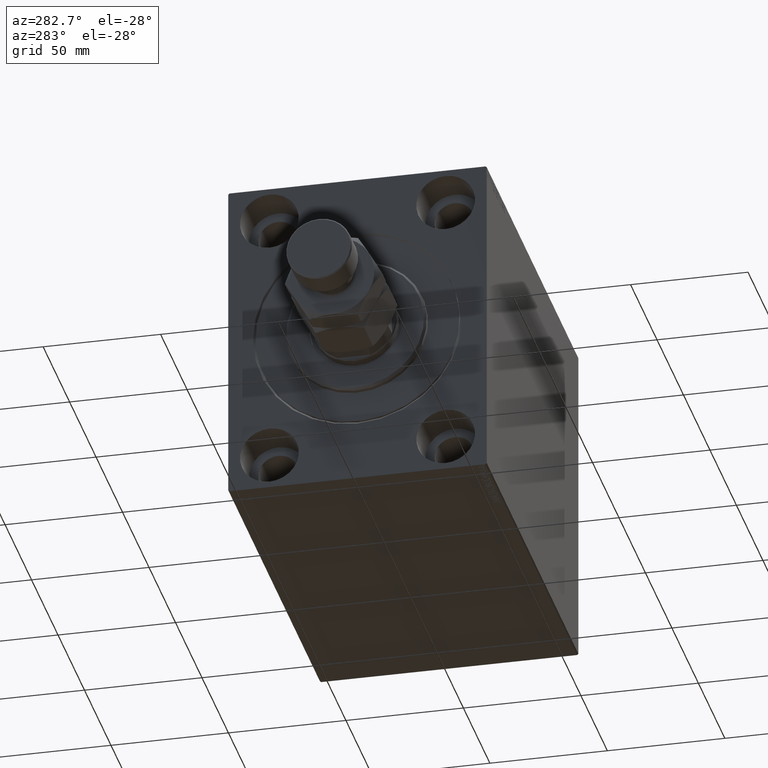
[diagram: clean part render]
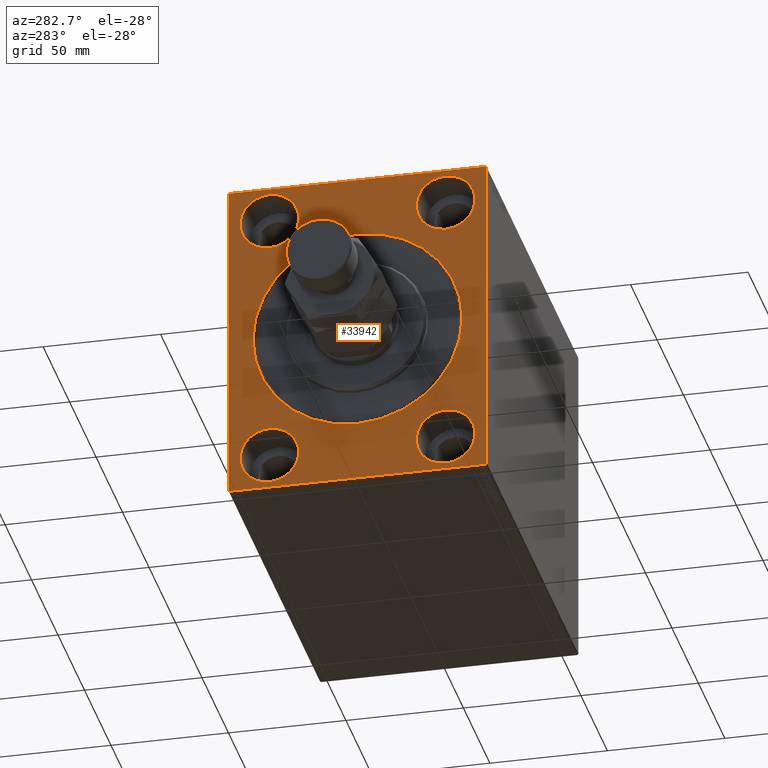
[diagram: same view with one face highlighted and labeled with its STEP entity id]
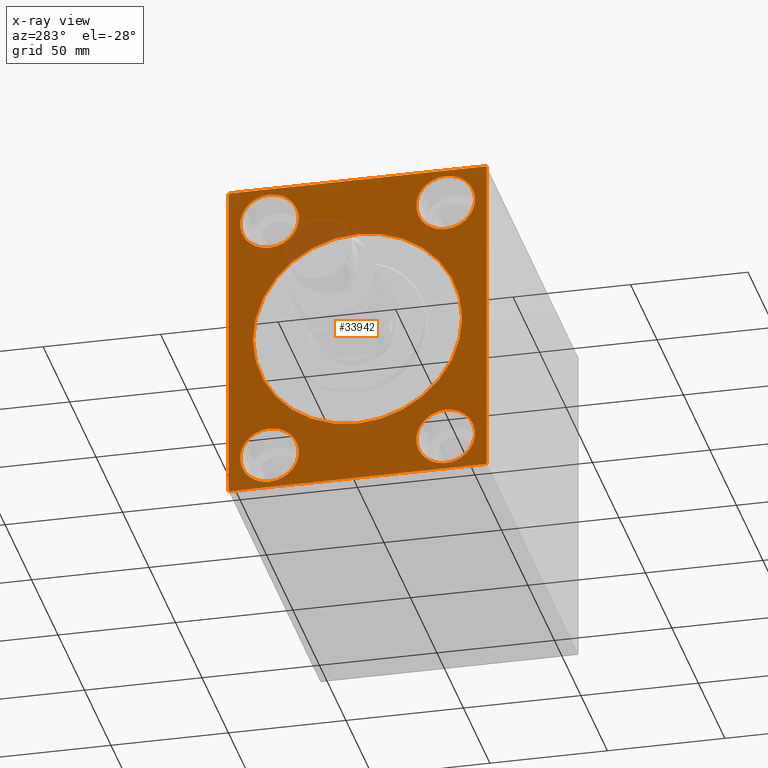
[diagram: x-ray of the same camera — body ghosted, the highlighted face saturated]
A machine part, auxiliary view. The second image highlights one B-rep face of the part: STEP entity #33942.
The next image is the same camera in x-ray: the body ghosted, the highlighted face saturated — about 4% of this face is hidden behind the body in this view.
In plain terms, the highlighted planar face has unit normal (1, 0, 0).
Its self-contained STEP definition (entity closure, byte-faithful):
#643 = CARTESIAN_POINT ( 'NONE',  ( 0.000000000000000000, 0.000000000000000000, 0.000000000000000000 ) ) ;
#1263 = EDGE_CURVE ( 'NONE', #8685, #42105, #13647, .T. ) ;
#1403 = ORIENTED_EDGE ( 'NONE', *, *, #1263, .F. ) ;
#1580 = ORIENTED_EDGE ( 'NONE', *, *, #45381, .T. ) ;
#1632 = DIRECTION ( 'NONE',  ( 1.000000000000000000, 0.000000000000000000, 0.000000000000000000 ) ) ;
#1695 = ORIENTED_EDGE ( 'NONE', *, *, #32807, .F. ) ;
#1754 = CARTESIAN_POINT ( 'NONE',  ( 0.000000000000000000, 37.49999999999997868, -67.49999999999998579 ) ) ;
#1776 = EDGE_CURVE ( 'NONE', #16353, #32820, #16594, .T. ) ;
#2021 = FACE_BOUND ( 'NONE', #44489, .T. ) ;
#2114 = LINE ( 'NONE', #40342, #9102 ) ;
#2124 = EDGE_CURVE ( 'NONE', #30920, #30005, #43813, .T. ) ;
#2159 = EDGE_LOOP ( 'NONE', ( #10799, #1580, #25220, #12061, #42163, #17753, #25657, #2765 ) ) ;
#2565 = CARTESIAN_POINT ( 'NONE',  ( 0.000000000000000000, -37.50000000000002132, -54.99999999999999289 ) ) ;
#2765 = ORIENTED_EDGE ( 'NONE', *, *, #3511, .T. ) ;
#3091 = AXIS2_PLACEMENT_3D ( 'NONE', #44102, #43644, #40191 ) ;
#3511 = EDGE_CURVE ( 'NONE', #25578, #35047, #10418, .T. ) ;
#4516 = VERTEX_POINT ( 'NONE', #37084 ) ;
#4593 = EDGE_CURVE ( 'NONE', #10988, #16775, #45145, .T. ) ;
#4630 = DIRECTION ( 'NONE',  ( 0.000000000000000000, 0.000000000000000000, -1.000000000000000000 ) ) ;
#5181 = ORIENTED_EDGE ( 'NONE', *, *, #17917, .F. ) ;
#5474 = FACE_BOUND ( 'NONE', #15330, .T. ) ;
#5680 = CARTESIAN_POINT ( 'NONE',  ( 0.000000000000000000, 37.50000000000000711, 42.50000000000000711 ) ) ;
#5946 = VECTOR ( 'NONE', #34794, 1000.000000000000000 ) ;
#6247 = AXIS2_PLACEMENT_3D ( 'NONE', #24162, #38206, #20711 ) ;
#6376 = FACE_BOUND ( 'NONE', #20021, .T. ) ;
#6931 = LINE ( 'NONE', #16400, #5946 ) ;
#7049 = DIRECTION ( 'NONE',  ( 0.000000000000000000, -1.000000000000000000, -1.261617073437677999E-16 ) ) ;
#7282 = CARTESIAN_POINT ( 'NONE',  ( 0.000000000000000000, 54.99999999999999289, 70.00000000000000000 ) ) ;
#7882 = EDGE_LOOP ( 'NONE', ( #22216, #10184 ) ) ;
#7886 = CARTESIAN_POINT ( 'NONE',  ( 0.000000000000000000, 37.50000000000000711, 55.00000000000000711 ) ) ;
#8685 = VERTEX_POINT ( 'NONE', #5680 ) ;
#9020 = DIRECTION ( 'NONE',  ( -1.000000000000000000, 0.000000000000000000, 0.000000000000000000 ) ) ;
#9032 = DIRECTION ( 'NONE',  ( 0.000000000000000000, 0.000000000000000000, 1.000000000000000000 ) ) ;
#9049 = CARTESIAN_POINT ( 'NONE',  ( 0.000000000000000000, -54.50000000000000711, 69.99999999999998579 ) ) ;
#9102 = VECTOR ( 'NONE', #15687, 1000.000000000000000 ) ;
#9129 = VECTOR ( 'NONE', #20738, 1000.000000000000114 ) ;
#9307 = VECTOR ( 'NONE', #16139, 1000.000000000000000 ) ;
#9322 = VERTEX_POINT ( 'NONE', #36373 ) ;
#10184 = ORIENTED_EDGE ( 'NONE', *, *, #24791, .T. ) ;
#10309 = DIRECTION ( 'NONE',  ( -1.000000000000000000, 0.000000000000000000, 0.000000000000000000 ) ) ;
#10418 = LINE ( 'NONE', #38492, #43851 ) ;
#10799 = ORIENTED_EDGE ( 'NONE', *, *, #14461, .F. ) ;
#10988 = VERTEX_POINT ( 'NONE', #12527 ) ;
#11446 = AXIS2_PLACEMENT_3D ( 'NONE', #2565, #9020, #16605 ) ;
#11686 = DIRECTION ( 'NONE',  ( 0.000000000000000000, 0.000000000000000000, -1.000000000000000000 ) ) ;
#12061 = ORIENTED_EDGE ( 'NONE', *, *, #27314, .T. ) ;
#12097 = DIRECTION ( 'NONE',  ( 0.000000000000000000, 0.000000000000000000, 1.000000000000000000 ) ) ;
#12343 = LINE ( 'NONE', #25924, #29063 ) ;
#12486 = CARTESIAN_POINT ( 'NONE',  ( 0.000000000000000000, 37.49999999999997868, -54.99999999999999289 ) ) ;
#12527 = CARTESIAN_POINT ( 'NONE',  ( 0.000000000000000000, 55.00000000000002132, -69.49999999999997158 ) ) ;
#12528 = CIRCLE ( 'NONE', #22087, 12.49999999999999645 ) ;
#12844 = CARTESIAN_POINT ( 'NONE',  ( 0.000000000000000000, 37.50000000000000711, 67.50000000000000000 ) ) ;
#12922 = AXIS2_PLACEMENT_3D ( 'NONE', #21351, #39312, #35855 ) ;
#13072 = FACE_BOUND ( 'NONE', #29958, .T. ) ;
#13292 = EDGE_CURVE ( 'NONE', #35885, #21132, #12528, .T. ) ;
#13613 = LINE ( 'NONE', #38458, #9129 ) ;
#13647 = CIRCLE ( 'NONE', #29833, 12.49999999999999645 ) ;
#14461 = EDGE_CURVE ( 'NONE', #29312, #35047, #6931, .T. ) ;
#14562 = DIRECTION ( 'NONE',  ( -0.000000000000000000, -0.7071067811865574537, 0.7071067811865376918 ) ) ;
#15098 = CIRCLE ( 'NONE', #6247, 12.49999999999999645 ) ;
#15253 = AXIS2_PLACEMENT_3D ( 'NONE', #18123, #10309, #24331 ) ;
#15330 = EDGE_LOOP ( 'NONE', ( #1695, #31976 ) ) ;
#15687 = DIRECTION ( 'NONE',  ( 0.000000000000000000, 1.000000000000000000, 2.523234146875355012E-16 ) ) ;
#15762 = ORIENTED_EDGE ( 'NONE', *, *, #42958, .F. ) ;
#15831 = DIRECTION ( 'NONE',  ( 0.000000000000000000, 0.000000000000000000, -1.000000000000000000 ) ) ;
#15944 = AXIS2_PLACEMENT_3D ( 'NONE', #19125, #1632, #4630 ) ;
#16139 = DIRECTION ( 'NONE',  ( 0.000000000000000000, -1.982541115402065110E-16, 1.000000000000000000 ) ) ;
#16353 = VERTEX_POINT ( 'NONE', #44993 ) ;
#16400 = CARTESIAN_POINT ( 'NONE',  ( 0.000000000000000000, -55.00000000000000711, 69.99999999999998579 ) ) ;
#16575 = CARTESIAN_POINT ( 'NONE',  ( 0.000000000000000000, -55.00000000000000711, 69.49999999999998579 ) ) ;
#16594 = CIRCLE ( 'NONE', #12922, 12.49999999999999645 ) ;
#16605 = DIRECTION ( 'NONE',  ( 0.000000000000000000, 0.000000000000000000, 1.000000000000000000 ) ) ;
#16775 = VERTEX_POINT ( 'NONE', #40929 ) ;
#17041 = CARTESIAN_POINT ( 'NONE',  ( 0.000000000000000000, 55.00000000000002132, -70.00000000000000000 ) ) ;
#17545 = VERTEX_POINT ( 'NONE', #25112 ) ;
#17753 = ORIENTED_EDGE ( 'NONE', *, *, #37257, .T. ) ;
#17917 = EDGE_CURVE ( 'NONE', #21132, #35885, #25892, .T. ) ;
#18023 = AXIS2_PLACEMENT_3D ( 'NONE', #26811, #29584, #12097 ) ;
#18123 = CARTESIAN_POINT ( 'NONE',  ( 0.000000000000000000, -37.50000000000000711, 55.00000000000000711 ) ) ;
#18252 = VECTOR ( 'NONE', #31655, 1000.000000000000114 ) ;
#19125 = CARTESIAN_POINT ( 'NONE',  ( 0.000000000000000000, 0.000000000000000000, 0.000000000000000000 ) ) ;
#19516 = FACE_OUTER_BOUND ( 'NONE', #2159, .T. ) ;
#20021 = EDGE_LOOP ( 'NONE', ( #33533, #5181 ) ) ;
#20711 = DIRECTION ( 'NONE',  ( 0.000000000000000000, 0.000000000000000000, 1.000000000000000000 ) ) ;
#20738 = DIRECTION ( 'NONE',  ( -0.000000000000000000, 0.7071067811865474617, -0.7071067811865474617 ) ) ;
#21132 = VERTEX_POINT ( 'NONE', #1754 ) ;
#21351 = CARTESIAN_POINT ( 'NONE',  ( 0.000000000000000000, -37.50000000000000711, 55.00000000000000711 ) ) ;
#21825 = CIRCLE ( 'NONE', #15944, 44.49999999999995737 ) ;
#22087 = AXIS2_PLACEMENT_3D ( 'NONE', #12486, #30437, #9032 ) ;
#22216 = ORIENTED_EDGE ( 'NONE', *, *, #41762, .T. ) ;
#22481 = DIRECTION ( 'NONE',  ( 1.000000000000000000, 0.000000000000000000, 0.000000000000000000 ) ) ;
#23368 = CARTESIAN_POINT ( 'NONE',  ( 0.000000000000000000, -37.50000000000002132, -42.49999999999999289 ) ) ;
#23637 = CARTESIAN_POINT ( 'NONE',  ( 0.000000000000000000, 0.000000000000000000, 0.000000000000000000 ) ) ;
#24162 = CARTESIAN_POINT ( 'NONE',  ( 0.000000000000000000, 37.50000000000000711, 55.00000000000000711 ) ) ;
#24331 = DIRECTION ( 'NONE',  ( 0.000000000000000000, 0.000000000000000000, 1.000000000000000000 ) ) ;
#24645 = CIRCLE ( 'NONE', #18023, 12.49999999999999645 ) ;
#24791 = EDGE_CURVE ( 'NONE', #17545, #9322, #30403, .T. ) ;
#25112 = CARTESIAN_POINT ( 'NONE',  ( 0.000000000000000000, 5.449678256205716459E-15, -44.49999999999995737 ) ) ;
#25220 = ORIENTED_EDGE ( 'NONE', *, *, #34053, .F. ) ;
#25578 = VERTEX_POINT ( 'NONE', #30651 ) ;
#25657 = ORIENTED_EDGE ( 'NONE', *, *, #26161, .F. ) ;
#25892 = CIRCLE ( 'NONE', #3091, 12.49999999999999645 ) ;
#25924 = CARTESIAN_POINT ( 'NONE',  ( 0.000000000000000000, 55.00000000000002132, -69.49999999999997158 ) ) ;
#26132 = CARTESIAN_POINT ( 'NONE',  ( 0.000000000000000000, -37.50000000000000711, 67.50000000000000000 ) ) ;
#26161 = EDGE_CURVE ( 'NONE', #25578, #39164, #2114, .T. ) ;
#26378 = DIRECTION ( 'NONE',  ( 0.000000000000000000, -0.7071067811865474617, -0.7071067811865474617 ) ) ;
#26811 = CARTESIAN_POINT ( 'NONE',  ( 0.000000000000000000, -37.50000000000002132, -54.99999999999999289 ) ) ;
#27164 = CARTESIAN_POINT ( 'NONE',  ( 0.000000000000000000, 37.49999999999997868, -42.49999999999999289 ) ) ;
#27314 = EDGE_CURVE ( 'NONE', #4516, #16775, #13613, .T. ) ;
#27621 = VECTOR ( 'NONE', #7049, 1000.000000000000000 ) ;
#27969 = ORIENTED_EDGE ( 'NONE', *, *, #1776, .F. ) ;
#28458 = CARTESIAN_POINT ( 'NONE',  ( 0.000000000000000000, -37.50000000000002132, -67.49999999999998579 ) ) ;
#28913 = ORIENTED_EDGE ( 'NONE', *, *, #32497, .F. ) ;
#29063 = VECTOR ( 'NONE', #26378, 1000.000000000000114 ) ;
#29312 = VERTEX_POINT ( 'NONE', #16575 ) ;
#29584 = DIRECTION ( 'NONE',  ( -1.000000000000000000, 0.000000000000000000, 0.000000000000000000 ) ) ;
#29730 = DIRECTION ( 'NONE',  ( -1.000000000000000000, 0.000000000000000000, 0.000000000000000000 ) ) ;
#29833 = AXIS2_PLACEMENT_3D ( 'NONE', #7886, #29730, #35965 ) ;
#29958 = EDGE_LOOP ( 'NONE', ( #15762, #27969 ) ) ;
#30005 = VERTEX_POINT ( 'NONE', #23368 ) ;
#30403 = CIRCLE ( 'NONE', #33306, 44.49999999999995737 ) ;
#30437 = DIRECTION ( 'NONE',  ( -1.000000000000000000, 0.000000000000000000, 0.000000000000000000 ) ) ;
#30566 = DIRECTION ( 'NONE',  ( 1.000000000000000000, 0.000000000000000000, 0.000000000000000000 ) ) ;
#30651 = CARTESIAN_POINT ( 'NONE',  ( 0.000000000000000000, -54.49999999999997868, -70.00000000000002842 ) ) ;
#30920 = VERTEX_POINT ( 'NONE', #28458 ) ;
#31292 = AXIS2_PLACEMENT_3D ( 'NONE', #23637, #30566, #15831 ) ;
#31655 = DIRECTION ( 'NONE',  ( -0.000000000000000000, 0.7071067811865474617, 0.7071067811865474617 ) ) ;
#31976 = ORIENTED_EDGE ( 'NONE', *, *, #2124, .F. ) ;
#32497 = EDGE_CURVE ( 'NONE', #42105, #8685, #15098, .T. ) ;
#32807 = EDGE_CURVE ( 'NONE', #30005, #30920, #24645, .T. ) ;
#32820 = VERTEX_POINT ( 'NONE', #26132 ) ;
#33306 = AXIS2_PLACEMENT_3D ( 'NONE', #643, #22481, #11686 ) ;
#33533 = ORIENTED_EDGE ( 'NONE', *, *, #13292, .F. ) ;
#33634 = CIRCLE ( 'NONE', #15253, 12.49999999999999645 ) ;
#33789 = PLANE ( 'NONE',  #31292 ) ;
#33942 = ADVANCED_FACE ( 'NONE', ( #37922, #6376, #13072, #2021, #5474, #19516 ), #33789, .F. ) ;
#34053 = EDGE_CURVE ( 'NONE', #4516, #41532, #39059, .T. ) ;
#34794 = DIRECTION ( 'NONE',  ( 0.000000000000000000, 0.000000000000000000, -1.000000000000000000 ) ) ;
#35047 = VERTEX_POINT ( 'NONE', #40670 ) ;
#35855 = DIRECTION ( 'NONE',  ( 0.000000000000000000, 0.000000000000000000, 1.000000000000000000 ) ) ;
#35885 = VERTEX_POINT ( 'NONE', #27164 ) ;
#35965 = DIRECTION ( 'NONE',  ( 0.000000000000000000, 0.000000000000000000, 1.000000000000000000 ) ) ;
#36373 = CARTESIAN_POINT ( 'NONE',  ( 0.000000000000000000, 0.000000000000000000, 44.49999999999995737 ) ) ;
#37084 = CARTESIAN_POINT ( 'NONE',  ( 0.000000000000000000, 54.49999999999996447, 70.00000000000000000 ) ) ;
#37257 = EDGE_CURVE ( 'NONE', #10988, #39164, #12343, .T. ) ;
#37725 = CARTESIAN_POINT ( 'NONE',  ( 0.000000000000000000, 54.49999999999999289, -70.00000000000000000 ) ) ;
#37922 = FACE_BOUND ( 'NONE', #7882, .T. ) ;
#38206 = DIRECTION ( 'NONE',  ( -1.000000000000000000, 0.000000000000000000, 0.000000000000000000 ) ) ;
#38458 = CARTESIAN_POINT ( 'NONE',  ( 0.000000000000000000, 54.49999999999996447, 70.00000000000000000 ) ) ;
#38492 = CARTESIAN_POINT ( 'NONE',  ( 0.000000000000000000, -54.49999999999997868, -70.00000000000002842 ) ) ;
#39029 = LINE ( 'NONE', #39712, #18252 ) ;
#39059 = LINE ( 'NONE', #7282, #27621 ) ;
#39164 = VERTEX_POINT ( 'NONE', #37725 ) ;
#39312 = DIRECTION ( 'NONE',  ( -1.000000000000000000, 0.000000000000000000, 0.000000000000000000 ) ) ;
#39712 = CARTESIAN_POINT ( 'NONE',  ( 0.000000000000000000, -55.00000000000000711, 69.49999999999998579 ) ) ;
#40191 = DIRECTION ( 'NONE',  ( 0.000000000000000000, 0.000000000000000000, 1.000000000000000000 ) ) ;
#40342 = CARTESIAN_POINT ( 'NONE',  ( 0.000000000000000000, -55.00000000000000711, -70.00000000000002842 ) ) ;
#40670 = CARTESIAN_POINT ( 'NONE',  ( 0.000000000000000000, -55.00000000000000711, -69.50000000000001421 ) ) ;
#40929 = CARTESIAN_POINT ( 'NONE',  ( 0.000000000000000000, 54.99999999999999289, 69.49999999999997158 ) ) ;
#41532 = VERTEX_POINT ( 'NONE', #9049 ) ;
#41762 = EDGE_CURVE ( 'NONE', #9322, #17545, #21825, .T. ) ;
#42105 = VERTEX_POINT ( 'NONE', #12844 ) ;
#42163 = ORIENTED_EDGE ( 'NONE', *, *, #4593, .F. ) ;
#42958 = EDGE_CURVE ( 'NONE', #32820, #16353, #33634, .T. ) ;
#43644 = DIRECTION ( 'NONE',  ( -1.000000000000000000, 0.000000000000000000, 0.000000000000000000 ) ) ;
#43813 = CIRCLE ( 'NONE', #11446, 12.49999999999999645 ) ;
#43851 = VECTOR ( 'NONE', #14562, 999.9999999999998863 ) ;
#44102 = CARTESIAN_POINT ( 'NONE',  ( 0.000000000000000000, 37.49999999999997868, -54.99999999999999289 ) ) ;
#44489 = EDGE_LOOP ( 'NONE', ( #28913, #1403 ) ) ;
#44993 = CARTESIAN_POINT ( 'NONE',  ( 0.000000000000000000, -37.50000000000000711, 42.50000000000000711 ) ) ;
#45145 = LINE ( 'NONE', #17041, #9307 ) ;
#45381 = EDGE_CURVE ( 'NONE', #29312, #41532, #39029, .T. ) ;